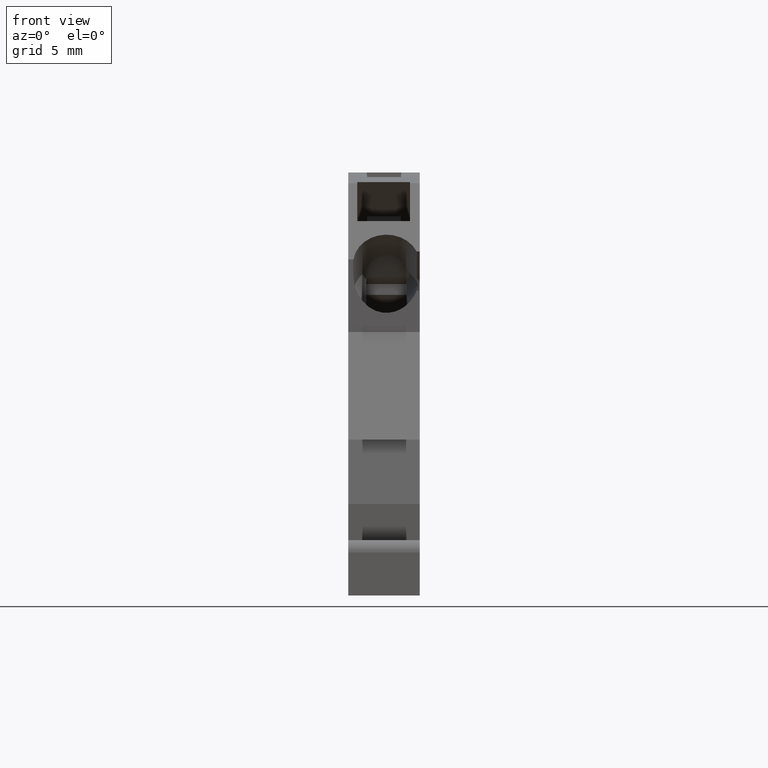
[diagram: clean part render]
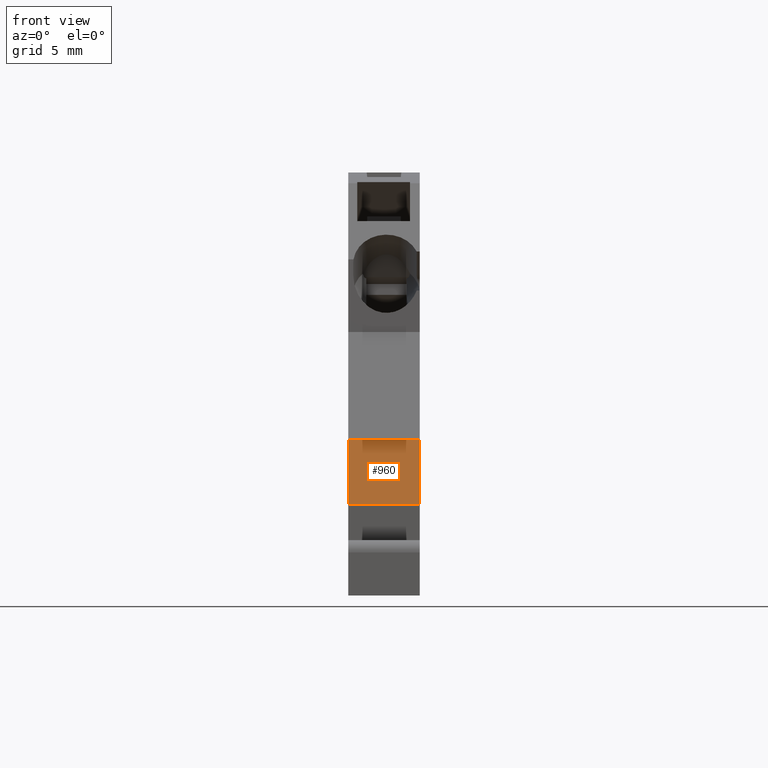
[diagram: same view with one face highlighted and labeled with its STEP entity id]
A machine part, front view. The second image highlights one B-rep face of the part: STEP entity #960.
In plain terms, the highlighted planar face has unit normal (0, 0.9848, -0.1736).
Its self-contained STEP definition (entity closure, byte-faithful):
#570=CARTESIAN_POINT('',(85.9288839072414,139.943633130587,
9.22500000000691));
#580=DIRECTION('',(0.17364817766693,-0.984807753012208,
8.73862556921739E-14));
#590=DIRECTION('',(0.984807753012208,0.17364817766693,
4.95592083189846E-13));
#600=AXIS2_PLACEMENT_3D('',#570,#580,#590);
#610=PLANE('',#600);
#620=CARTESIAN_POINT('',(70.3110332415993,137.189784677558,
9.22499999999886));
#630=DIRECTION('',(0.984807753012208,0.17364817766693,
4.84387482353758E-13));
#640=VECTOR('',#630,1.);
#650=LINE('',#620,#640);
#660=CARTESIAN_POINT('',(81.2869033162164,139.125126708464,
9.22500000000426));
#670=VERTEX_POINT('',#660);
#680=CARTESIAN_POINT('',(85.9288839072414,139.943633130587,
9.22500000000655));
#690=VERTEX_POINT('',#680);
#700=EDGE_CURVE('',#670,#690,#650,.T.);
#710=ORIENTED_EDGE('',*,*,#700,.F.);
#720=CARTESIAN_POINT('',(85.9288839072438,139.943633130587,
4.47500000000704));
#730=DIRECTION('',(-5.03237389910914E-13,2.85605513013457E-25,1.));
#740=VECTOR('',#730,1.);
#750=LINE('',#720,#740);
#760=CARTESIAN_POINT('',(85.9288839072388,139.943633130587,
14.375000000007));
#770=VERTEX_POINT('',#760);
#780=EDGE_CURVE('',#690,#770,#750,.T.);
#790=ORIENTED_EDGE('',*,*,#780,.F.);
#800=CARTESIAN_POINT('',(70.3110332415966,137.189784677558,
14.374999999999));
#810=DIRECTION('',(0.984807753012208,0.17364817766693,
5.06342142665721E-13));
#820=VECTOR('',#810,1.);
#830=LINE('',#800,#820);
#840=CARTESIAN_POINT('',(81.2869033162138,139.125126708464,
14.3750000000047));
#850=VERTEX_POINT('',#840);
#860=EDGE_CURVE('',#850,#770,#830,.T.);
#870=ORIENTED_EDGE('',*,*,#860,.T.);
#880=CARTESIAN_POINT('',(81.2869033162187,139.125126708464,
4.37500000000465));
#890=DIRECTION('',(4.93579527483088E-13,-1.70294172228178E-15,-1.));
#900=VECTOR('',#890,1.);
#910=LINE('',#880,#900);
#920=EDGE_CURVE('',#850,#670,#910,.T.);
#930=ORIENTED_EDGE('',*,*,#920,.F.);
#940=EDGE_LOOP('',(#930,#870,#790,#710));
#950=FACE_OUTER_BOUND('',#940,.T.);
#960=ADVANCED_FACE('',(#950),#610,.F.);